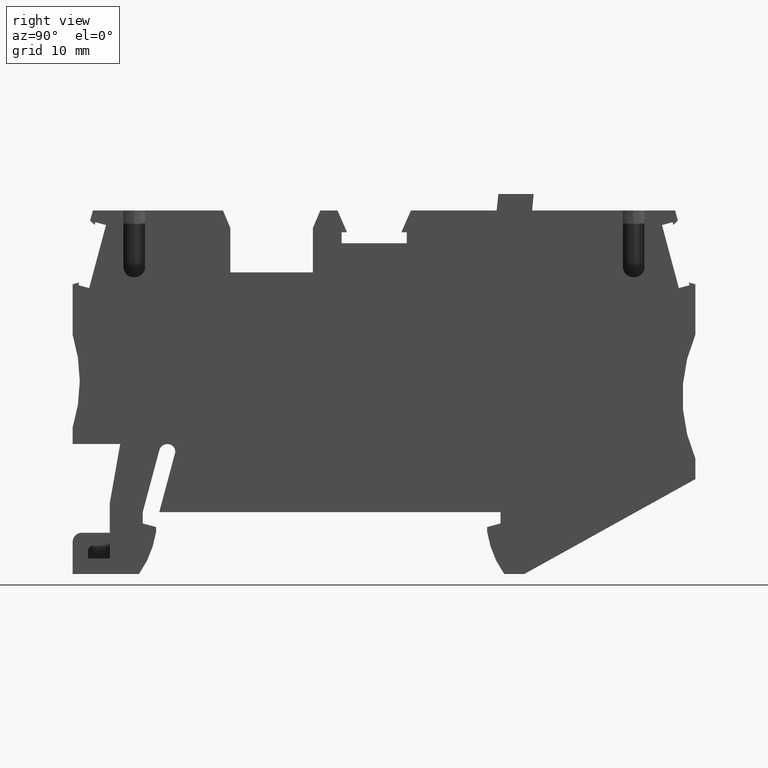
[diagram: clean part render]
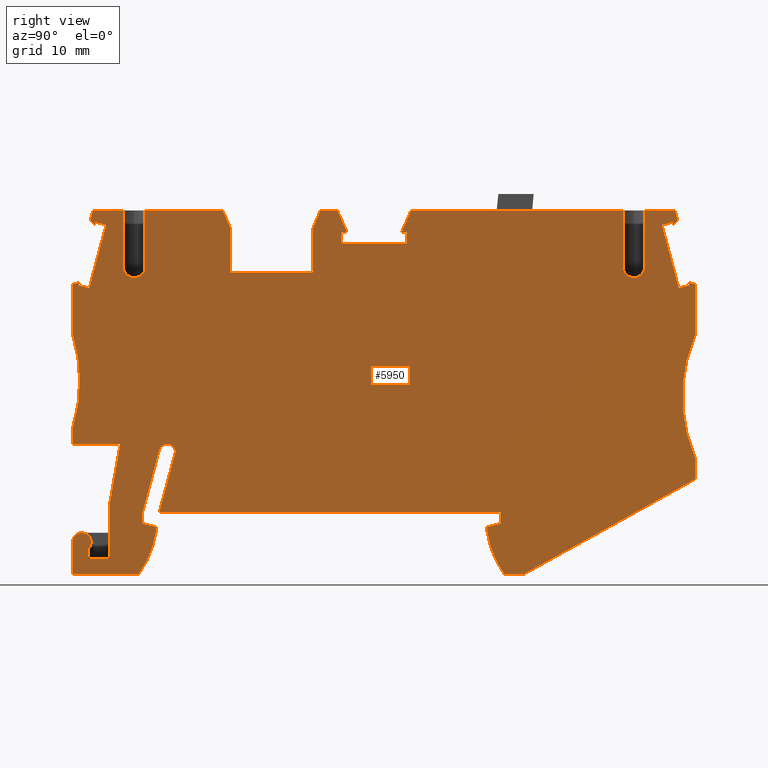
[diagram: same view with one face highlighted and labeled with its STEP entity id]
A machine part, right view. The second image highlights one B-rep face of the part: STEP entity #5950.
In plain terms, the highlighted planar face has unit normal (-1, 0, 0).
Its self-contained STEP definition (entity closure, byte-faithful):
#10=CARTESIAN_POINT('',(17.498485300259,-19.9194100470041,
53.6700000000077));
#20=DIRECTION('',(1.20466702215975E-13,5.7343834486746E-13,-1.));
#30=DIRECTION('',(-1.,0.,-1.20466702215975E-13));
#40=AXIS2_PLACEMENT_3D('',#10,#20,#30);
#50=PLANE('',#40);
#60=CARTESIAN_POINT('',(6.62732765293212,-43.2533150025752,
53.669999999993));
#70=DIRECTION('',(0.389303997086923,-0.921109330021222,
-4.81281681175005E-13));
#80=VECTOR('',#70,1.);
#90=LINE('',#60,#80);
#100=CARTESIAN_POINT('',(-7.78633249760623,-9.15000000000249,
53.6700000000108));
#110=VERTEX_POINT('',#100);
#120=CARTESIAN_POINT('',(-7.06783277832441,-10.850000000003,
53.6700000000099));
#130=VERTEX_POINT('',#120);
#140=EDGE_CURVE('',#110,#130,#90,.T.);
#150=ORIENTED_EDGE('',*,*,#140,.F.);
#160=CARTESIAN_POINT('',(-7.06783277832434,-41.5717607425285,
53.6699999999942));
#170=DIRECTION('',(-2.76167977375508E-15,1.,0.));
#180=VECTOR('',#170,1.);
#190=LINE('',#160,#180);
#200=CARTESIAN_POINT('',(-7.06783277832441,-15.1500000000016,
53.6700000000074));
#210=VERTEX_POINT('',#200);
#220=EDGE_CURVE('',#210,#130,#190,.T.);
#230=ORIENTED_EDGE('',*,*,#220,.T.);
#240=CARTESIAN_POINT('',(-31.4325633273473,-15.1500000000016,
53.6699999999942));
#250=DIRECTION('',(-1.,0.,0.));
#260=VECTOR('',#250,1.);
#270=LINE('',#240,#260);
#280=CARTESIAN_POINT('',(0.932167221675293,-15.1500000000016,
53.6700000000084));
#290=VERTEX_POINT('',#280);
#300=EDGE_CURVE('',#290,#210,#270,.T.);
#310=ORIENTED_EDGE('',*,*,#300,.T.);
#320=CARTESIAN_POINT('',(0.932167221675449,-42.5540372297518,
53.6699999999942));
#330=DIRECTION('',(5.53723733531797E-15,-1.,0.));
#340=VECTOR('',#330,1.);
#350=LINE('',#320,#340);
#360=CARTESIAN_POINT('',(0.932167221675343,-10.8500000000034,
53.6700000000109));
#370=VERTEX_POINT('',#360);
#380=EDGE_CURVE('',#370,#290,#350,.T.);
#390=ORIENTED_EDGE('',*,*,#380,.T.);
#400=CARTESIAN_POINT('',(-11.8063846804768,-40.9899397279071,
53.669999999992));
#410=DIRECTION('',(0.389303997086923,0.921109330021222,
5.75151037907062E-13));
#420=VECTOR('',#410,1.);
#430=LINE('',#400,#420);
#440=CARTESIAN_POINT('',(1.65066694095677,-9.15000000000342,
53.6700000000119));
#450=VERTEX_POINT('',#440);
#460=EDGE_CURVE('',#370,#450,#430,.T.);
#470=ORIENTED_EDGE('',*,*,#460,.F.);
#480=CARTESIAN_POINT('',(-30.6958559619306,-9.15000000000734,
53.670000000008));
#490=DIRECTION('',(1.,1.21042065259758E-13,1.20466137065733E-13));
#500=VECTOR('',#490,1.);
#510=LINE('',#480,#500);
#520=CARTESIAN_POINT('',(3.32251284670154,-9.15000000000322,
53.6700000000121));
#530=VERTEX_POINT('',#520);
#540=EDGE_CURVE('',#450,#530,#510,.T.);
#550=ORIENTED_EDGE('',*,*,#540,.F.);
#560=CARTESIAN_POINT('',(18.9756823710978,-44.7695023145185,
53.6699999999936));
#570=DIRECTION('',(-0.402320578211921,0.915498854366965,
4.76507722169117E-13));
#580=VECTOR('',#570,1.);
#590=LINE('',#560,#580);
#600=CARTESIAN_POINT('',(4.24756568876222,-11.2550000000016,
53.670000000011));
#610=VERTEX_POINT('',#600);
#620=EDGE_CURVE('',#610,#530,#590,.T.);
#630=ORIENTED_EDGE('',*,*,#620,.T.);
#640=CARTESIAN_POINT('',(-30.9543174626305,-11.2550000000016,
53.6700000000068));
#650=DIRECTION('',(1.,0.,1.20466137065733E-13));
#660=VECTOR('',#650,1.);
#670=LINE('',#640,#660);
#680=CARTESIAN_POINT('',(3.71966722167664,-11.2550000000016,
53.670000000011));
#690=VERTEX_POINT('',#680);
#700=EDGE_CURVE('',#690,#610,#670,.T.);
#710=ORIENTED_EDGE('',*,*,#700,.T.);
#720=CARTESIAN_POINT('',(3.71966722167659,-42.8962991932687,
53.6699999999942));
#730=DIRECTION('',(0.,1.,0.));
#740=VECTOR('',#730,1.);
#750=LINE('',#720,#740);
#760=CARTESIAN_POINT('',(3.71966722167661,-12.3250000000012,
53.6700000000104));
#770=VERTEX_POINT('',#760);
#780=EDGE_CURVE('',#770,#690,#750,.T.);
#790=ORIENTED_EDGE('',*,*,#780,.T.);
#800=CARTESIAN_POINT('',(-31.0856969427963,-12.3249999999992,
53.6699999999942));
#810=DIRECTION('',(-1.,5.79813974610488E-14,0.));
#820=VECTOR('',#810,1.);
#830=LINE('',#800,#820);
#840=CARTESIAN_POINT('',(10.0446672216768,-12.3250000000016,
53.6700000000111));
#850=VERTEX_POINT('',#840);
#860=EDGE_CURVE('',#850,#770,#830,.T.);
#870=ORIENTED_EDGE('',*,*,#860,.T.);
#880=CARTESIAN_POINT('',(10.0446672216767,-43.6729115409796,
53.6699999999942));
#890=DIRECTION('',(0.,1.,0.));
#900=VECTOR('',#890,1.);
#910=LINE('',#880,#900);
#920=CARTESIAN_POINT('',(10.0446672216767,-11.2550000000016,
53.6700000000117));
#930=VERTEX_POINT('',#920);
#940=EDGE_CURVE('',#850,#930,#910,.T.);
#950=ORIENTED_EDGE('',*,*,#940,.F.);
#960=CARTESIAN_POINT('',(-30.9543174626305,-11.2550000000016,
53.6700000000068));
#970=DIRECTION('',(1.,0.,1.20466137065733E-13));
#980=VECTOR('',#970,1.);
#990=LINE('',#960,#980);
#1000=CARTESIAN_POINT('',(9.51676875458973,-11.2550000000016,
53.6700000000117));
#1010=VERTEX_POINT('',#1000);
#1020=EDGE_CURVE('',#1010,#930,#990,.T.);
#1030=ORIENTED_EDGE('',*,*,#1020,.T.);
#1040=CARTESIAN_POINT('',(-3.97307229660355,-41.9517495493763,
53.6699999999924));
#1050=DIRECTION('',(-0.402320578212711,-0.915498854366618,
-5.73485703370125E-13));
#1060=VECTOR('',#1050,1.);
#1070=LINE('',#1040,#1060);
#1080=CARTESIAN_POINT('',(10.4418215966536,-9.15000000000095,
53.670000000013));
#1090=VERTEX_POINT('',#1080);
#1100=EDGE_CURVE('',#1090,#1010,#1070,.T.);
#1110=ORIENTED_EDGE('',*,*,#1100,.T.);
#1120=CARTESIAN_POINT('',(-30.6958559619292,-9.14999999999613,
53.670000000008));
#1130=DIRECTION('',(1.,-1.17433840429726E-13,1.20466137065733E-13));
#1140=VECTOR('',#1130,1.);
#1150=LINE('',#1120,#1140);
#1160=CARTESIAN_POINT('',(31.0066808257379,-9.15000000000337,
53.6700000000155));
#1170=VERTEX_POINT('',#1160);
#1180=EDGE_CURVE('',#1090,#1170,#1150,.T.);
#1190=ORIENTED_EDGE('',*,*,#1180,.F.);
#1200=CARTESIAN_POINT('',(31.0066808257462,-46.246723176996,
53.6699999999942));
#1210=DIRECTION('',(-2.25583440816024E-13,1.,5.73423253324989E-13));
#1220=VECTOR('',#1210,1.);
#1230=LINE('',#1200,#1220);
#1240=CARTESIAN_POINT('',(31.0066808257384,-14.6445224466614,
53.6700000000124));
#1250=VERTEX_POINT('',#1240);
#1260=EDGE_CURVE('',#1250,#1170,#1230,.T.);
#1270=ORIENTED_EDGE('',*,*,#1260,.T.);
#1280=CARTESIAN_POINT('',(32.0066808257384,-14.6445224466614,
53.6700000000124));
#1290=DIRECTION('',(-6.84227765783602E-49,0.,1.));
#1300=DIRECTION('',(1.,0.,6.84227765783602E-49));
#1310=AXIS2_PLACEMENT_3D('',#1280,#1290,#1300);
#1320=CIRCLE('',#1310,0.999999999999998);
#1330=CARTESIAN_POINT('',(32.0066808257389,-15.6445224466418,
53.6700000000119));
#1340=VERTEX_POINT('',#1330);
#1350=EDGE_CURVE('',#1250,#1340,#1320,.T.);
#1360=ORIENTED_EDGE('',*,*,#1350,.F.);
#1370=CARTESIAN_POINT('',(-31.4932830488171,-15.6445224466619,
53.6700000000042));
#1380=DIRECTION('',(-1.,-3.16899284591443E-13,-1.20466137065853E-13));
#1390=VECTOR('',#1380,1.);
#1400=LINE('',#1370,#1390);
#1410=CARTESIAN_POINT('',(32.1066808257383,-15.6445224466418,
53.6700000000119));
#1420=VERTEX_POINT('',#1410);
#1430=EDGE_CURVE('',#1420,#1340,#1400,.T.);
#1440=ORIENTED_EDGE('',*,*,#1430,.T.);
#1450=CARTESIAN_POINT('',(32.1066808257391,-14.6445224466551,
53.6700000000124));
#1460=DIRECTION('',(6.84227765783602E-49,0.,-1.));
#1470=DIRECTION('',(-1.,-1.08232867113145E-13,-6.84227765783602E-49));
#1480=AXIS2_PLACEMENT_3D('',#1450,#1460,#1470);
#1490=CIRCLE('',#1480,1.);
#1500=CARTESIAN_POINT('',(33.1066808257391,-14.6445224466548,
53.6700000000126));
#1510=VERTEX_POINT('',#1500);
#1520=EDGE_CURVE('',#1510,#1420,#1490,.T.);
#1530=ORIENTED_EDGE('',*,*,#1520,.T.);
#1540=CARTESIAN_POINT('',(33.1066808257463,-46.5045707548921,
53.6699999999943));
#1550=DIRECTION('',(2.25583440816024E-13,-1.,-5.73423253324989E-13));
#1560=VECTOR('',#1550,1.);
#1570=LINE('',#1540,#1560);
#1580=CARTESIAN_POINT('',(33.1066808257379,-9.15000000000362,
53.6700000000157));
#1590=VERTEX_POINT('',#1580);
#1600=EDGE_CURVE('',#1590,#1510,#1570,.T.);
#1610=ORIENTED_EDGE('',*,*,#1600,.T.);
#1620=CARTESIAN_POINT('',(-30.6958559619292,-9.14999999999613,
53.670000000008));
#1630=DIRECTION('',(1.,-1.17433840429726E-13,1.20466137065733E-13));
#1640=VECTOR('',#1630,1.);
#1650=LINE('',#1620,#1640);
#1660=CARTESIAN_POINT('',(36.07197299233,-9.15000000000398,
53.6700000000161));
#1670=VERTEX_POINT('',#1660);
#1680=EDGE_CURVE('',#1590,#1670,#1650,.T.);
#1690=ORIENTED_EDGE('',*,*,#1680,.F.);
#1700=CARTESIAN_POINT('',(46.5224801796062,-48.1518237877173,
53.669999999995));
#1710=DIRECTION('',(-0.258819045102926,0.96592582628896,
5.22692999993524E-13));
#1720=VECTOR('',#1710,1.);
#1730=LINE('',#1700,#1720);
#1740=CARTESIAN_POINT('',(36.3299328899745,-10.112719444327,
53.6700000000155));
#1750=VERTEX_POINT('',#1740);
#1760=EDGE_CURVE('',#1750,#1670,#1730,.T.);
#1770=ORIENTED_EDGE('',*,*,#1760,.T.);
#1780=CARTESIAN_POINT('',(3.56530628123667,-42.8773460529763,
53.6699999999928));
#1790=DIRECTION('',(-0.707106781187503,-0.707106781185593,
-4.90718576884319E-13));
#1800=VECTOR('',#1790,1.);
#1810=LINE('',#1780,#1800);
#1820=CARTESIAN_POINT('',(35.8971897020823,-10.545462632218,
53.6700000000153));
#1830=VERTEX_POINT('',#1820);
#1840=EDGE_CURVE('',#1750,#1830,#1810,.T.);
#1850=ORIENTED_EDGE('',*,*,#1840,.F.);
#1860=CARTESIAN_POINT('',(45.955117560187,-48.0821604176192,
53.6699999999949));
#1870=DIRECTION('',(0.258819045101928,-0.965925826289227,
-5.22720755569139E-13));
#1880=VECTOR('',#1870,1.);
#1890=LINE('',#1860,#1880);
#1900=CARTESIAN_POINT('',(35.8267113036061,-10.2824336682681,
53.6700000000154));
#1910=VERTEX_POINT('',#1900);
#1920=EDGE_CURVE('',#1910,#1830,#1890,.T.);
#1930=ORIENTED_EDGE('',*,*,#1920,.T.);
#1940=CARTESIAN_POINT('',(-33.1026799550058,-28.7520083907732,
53.6699999999965));
#1950=DIRECTION('',(0.9659258262891,0.258819045102404,2.647881913731E-13
));
#1960=VECTOR('',#1950,1.);
#1970=LINE('',#1940,#1960);
#1980=CARTESIAN_POINT('',(34.7931706694759,-10.5593700465279,
53.6700000000151));
#1990=VERTEX_POINT('',#1980);
#2000=EDGE_CURVE('',#1990,#1910,#1970,.T.);
#2010=ORIENTED_EDGE('',*,*,#2000,.T.);
#2020=CARTESIAN_POINT('',(44.8096873663856,-47.9415192742283,
53.6699999999949));
#2030=DIRECTION('',(0.258819045102705,-0.965925826289019,
-5.22720755569139E-13));
#2040=VECTOR('',#2030,1.);
#2050=LINE('',#2020,#2040);
#2060=CARTESIAN_POINT('',(36.4302011297503,-16.6688508978054,
53.6700000000118));
#2070=VERTEX_POINT('',#2060);
#2080=EDGE_CURVE('',#1990,#2070,#2050,.T.);
#2090=ORIENTED_EDGE('',*,*,#2080,.F.);
#2100=CARTESIAN_POINT('',(-33.9340399848925,-35.5228924805422,
53.6699999999925));
#2110=DIRECTION('',(-0.965925826288933,-0.258819045103026,
-2.647881913731E-13));
#2120=VECTOR('',#2110,1.);
#2130=LINE('',#2100,#2120);
#2140=CARTESIAN_POINT('',(37.4637417638806,-16.3919145195448,
53.6700000000121));
#2150=VERTEX_POINT('',#2140);
#2160=EDGE_CURVE('',#2150,#2070,#2130,.T.);
#2170=ORIENTED_EDGE('',*,*,#2160,.T.);
#2180=CARTESIAN_POINT('',(45.9551175602499,-48.0821604176269,
53.6699999999949));
#2190=DIRECTION('',(0.258819045103503,-0.965925826288805,
-5.22720755569139E-13));
#2200=VECTOR('',#2190,1.);
#2210=LINE('',#2180,#2200);
#2220=CARTESIAN_POINT('',(37.3932633654053,-16.1288855555997,
53.6700000000122));
#2230=VERTEX_POINT('',#2220);
#2240=EDGE_CURVE('',#2230,#2150,#2210,.T.);
#2250=ORIENTED_EDGE('',*,*,#2240,.T.);
#2260=CARTESIAN_POINT('',(-29.3566806060777,1.75670802586475,
53.6700000000144));
#2270=DIRECTION('',(-0.965925826290939,0.25881904509554,
3.20576898360514E-14));
#2280=VECTOR('',#2270,1.);
#2290=LINE('',#2260,#2280);
#2300=CARTESIAN_POINT('',(38.0321672216757,-16.3000793279236,
53.6700000000122));
#2310=VERTEX_POINT('',#2300);
#2320=EDGE_CURVE('',#2310,#2230,#2290,.T.);
#2330=ORIENTED_EDGE('',*,*,#2320,.T.);
#2340=CARTESIAN_POINT('',(38.0321672216757,-47.1093444392495,
53.6699999999945));
#2350=DIRECTION('',(5.55111512312578E-17,1.,5.73430192218893E-13));
#2360=VECTOR('',#2350,1.);
#2370=LINE('',#2340,#2360);
#2380=CARTESIAN_POINT('',(38.0321672216757,-21.2000000000026,
53.6700000000076));
#2390=VERTEX_POINT('',#2380);
#2400=EDGE_CURVE('',#2390,#2310,#2370,.T.);
#2410=ORIENTED_EDGE('',*,*,#2400,.T.);
#2420=CARTESIAN_POINT('',(51.7798943065431,-27.2000000000027,
53.6700000000076));
#2430=DIRECTION('',(0.,0.,1.));
#2440=DIRECTION('',(1.,0.,0.));
#2450=AXIS2_PLACEMENT_3D('',#2420,#2430,#2440);
#2460=CIRCLE('',#2450,15.);
#2470=CARTESIAN_POINT('',(38.0321672216756,-33.2000000000027,
53.6700000000076));
#2480=VERTEX_POINT('',#2470);
#2490=EDGE_CURVE('',#2390,#2480,#2460,.T.);
#2500=ORIENTED_EDGE('',*,*,#2490,.F.);
#2510=CARTESIAN_POINT('',(38.0321672216756,-47.1093444392495,
53.6699999999945));
#2520=DIRECTION('',(8.32667268468867E-17,1.,5.73430192218893E-13));
#2530=VECTOR('',#2520,1.);
#2540=LINE('',#2510,#2530);
#2550=CARTESIAN_POINT('',(38.0321672216756,-35.2,53.6700000000014));
#2560=VERTEX_POINT('',#2550);
#2570=EDGE_CURVE('',#2560,#2480,#2540,.T.);
#2580=ORIENTED_EDGE('',*,*,#2570,.T.);
#2590=CARTESIAN_POINT('',(-39.1523305504364,-78.0224586081626,
53.6699999999675));
#2600=DIRECTION('',(0.874435210897321,0.485142311021166,
3.83582055007992E-13));
#2610=VECTOR('',#2600,1.);
#2620=LINE('',#2590,#2610);
#2630=CARTESIAN_POINT('',(21.4498082777127,-44.4000000000015,
53.6699999999941));
#2640=VERTEX_POINT('',#2630);
#2650=EDGE_CURVE('',#2640,#2560,#2620,.T.);
#2660=ORIENTED_EDGE('',*,*,#2650,.T.);
#2670=CARTESIAN_POINT('',(-35.0240117337568,-44.3999999999983,
53.6699999999873));
#2680=DIRECTION('',(1.,-5.79120085220097E-14,1.20466137065733E-13));
#2690=VECTOR('',#2680,1.);
#2700=LINE('',#2670,#2690);
#2710=CARTESIAN_POINT('',(19.4911108748079,-44.4000000000014,
53.6699999999939));
#2720=VERTEX_POINT('',#2710);
#2730=EDGE_CURVE('',#2720,#2640,#2700,.T.);
#2740=ORIENTED_EDGE('',*,*,#2730,.T.);
#2750=CARTESIAN_POINT('',(27.2261399010515,-38.8846282117038,
53.6699999999942));
#2760=DIRECTION('',(0.,0.,-1.));
#2770=DIRECTION('',(-1.,0.,0.));
#2780=AXIS2_PLACEMENT_3D('',#2750,#2760,#2770);
#2790=CIRCLE('',#2780,9.499999999999);
#2800=CARTESIAN_POINT('',(17.8321672216751,-40.3000000000019,
53.669999999996));
#2810=VERTEX_POINT('',#2800);
#2820=EDGE_CURVE('',#2720,#2810,#2790,.T.);
#2830=ORIENTED_EDGE('',*,*,#2820,.F.);
#2840=CARTESIAN_POINT('',(17.8321672216721,-44.6290963090104,
53.6699999999942));
#2850=DIRECTION('',(-6.9022565440946E-13,-1.,0.));
#2860=VECTOR('',#2850,1.);
#2870=LINE('',#2840,#2860);
#2880=CARTESIAN_POINT('',(17.8321672216754,-39.8483339501617,
53.6699999999963));
#2890=VERTEX_POINT('',#2880);
#2900=EDGE_CURVE('',#2890,#2810,#2870,.T.);
#2910=ORIENTED_EDGE('',*,*,#2900,.T.);
#2920=CARTESIAN_POINT('',(-36.2442529339963,-54.3380670604362,
53.6699999999942));
#2930=DIRECTION('',(-0.965925826289086,-0.258819045102457,0.));
#2940=VECTOR('',#2930,1.);
#2950=LINE('',#2920,#2940);
#2960=CARTESIAN_POINT('',(19.1321672216756,-39.5000000000013,
53.6699999999966));
#2970=VERTEX_POINT('',#2960);
#2980=EDGE_CURVE('',#2970,#2890,#2950,.T.);
#2990=ORIENTED_EDGE('',*,*,#2980,.T.);
#3000=CARTESIAN_POINT('',(19.1321672216756,-44.7887162381846,
53.6699999999942));
#3010=DIRECTION('',(0.,-1.,0.));
#3020=VECTOR('',#3010,1.);
#3030=LINE('',#3000,#3020);
#3040=CARTESIAN_POINT('',(19.1321672216756,-38.4000000000014,
53.6699999999973));
#3050=VERTEX_POINT('',#3040);
#3060=EDGE_CURVE('',#3050,#2970,#3030,.T.);
#3070=ORIENTED_EDGE('',*,*,#3060,.T.);
#3080=CARTESIAN_POINT('',(-34.2873043683398,-38.4000000000014,
53.6699999999908));
#3090=DIRECTION('',(-1.,0.,-1.20466137065733E-13));
#3100=VECTOR('',#3090,1.);
#3110=LINE('',#3080,#3100);
#3120=CARTESIAN_POINT('',(-13.9678327783249,-38.4000000000014,
53.6699999999933));
#3130=VERTEX_POINT('',#3120);
#3140=EDGE_CURVE('',#3050,#3130,#3110,.T.);
#3150=ORIENTED_EDGE('',*,*,#3140,.F.);
#3160=CARTESIAN_POINT('',(-14.5708539323056,-40.6505055846918,
53.6699999999919));
#3170=DIRECTION('',(-0.258819045102995,-0.965925826288942,
-5.8507365618965E-13));
#3180=VECTOR('',#3170,1.);
#3190=LINE('',#3160,#3180);
#3200=CARTESIAN_POINT('',(-12.4395449513892,-32.6963521812908,
53.6699999999967));
#3210=VERTEX_POINT('',#3200);
#3220=EDGE_CURVE('',#3210,#3130,#3190,.T.);
#3230=ORIENTED_EDGE('',*,*,#3220,.T.);
#3240=CARTESIAN_POINT('',(-13.1156930297916,-32.5151788497187,
53.6699999999942));
#3250=DIRECTION('',(0.,0.,1.));
#3260=DIRECTION('',(1.,0.,0.));
#3270=AXIS2_PLACEMENT_3D('',#3240,#3250,#3260);
#3280=CIRCLE('',#3270,0.700000000000186);
#3290=CARTESIAN_POINT('',(-12.9558416625104,-31.8336749683074,
53.6699999999967));
#3300=VERTEX_POINT('',#3290);
#3310=EDGE_CURVE('',#3210,#3300,#3280,.T.);
#3320=ORIENTED_EDGE('',*,*,#3310,.F.);
#3330=CARTESIAN_POINT('',(-13.1855065178956,-32.6000000000015,
53.6699999999942));
#3340=DIRECTION('',(0.,0.,1.));
#3350=DIRECTION('',(1.,0.,0.));
#3360=AXIS2_PLACEMENT_3D('',#3330,#3340,#3350);
#3370=CIRCLE('',#3360,0.799999999999994);
#3380=CARTESIAN_POINT('',(-13.9582471789267,-32.3929447639189,
53.6699999999967));
#3390=VERTEX_POINT('',#3380);
#3400=EDGE_CURVE('',#3300,#3390,#3370,.T.);
#3410=ORIENTED_EDGE('',*,*,#3400,.F.);
#3420=CARTESIAN_POINT('',(-16.1198905892186,-40.4603077989502,
53.6699999999942));
#3430=DIRECTION('',(-0.258819045103168,-0.965925826288895,0.));
#3440=VECTOR('',#3430,1.);
#3450=LINE('',#3420,#3440);
#3460=CARTESIAN_POINT('',(-15.5678327783264,-38.3999999999907,
53.6699999999931));
#3470=VERTEX_POINT('',#3460);
#3480=EDGE_CURVE('',#3390,#3470,#3450,.T.);
#3490=ORIENTED_EDGE('',*,*,#3480,.F.);
#3500=CARTESIAN_POINT('',(-15.5678327783241,-40.5280919748539,
53.6699999999942));
#3510=DIRECTION('',(0.,1.,0.));
#3520=VECTOR('',#3510,1.);
#3530=LINE('',#3500,#3520);
#3540=CARTESIAN_POINT('',(-15.5678327783241,-39.5000000000014,
53.6699999999924));
#3550=VERTEX_POINT('',#3540);
#3560=EDGE_CURVE('',#3550,#3470,#3530,.T.);
#3570=ORIENTED_EDGE('',*,*,#3560,.T.);
#3580=CARTESIAN_POINT('',(-33.8218110628281,-34.6088612600111,
53.6699999999942));
#3590=DIRECTION('',(-0.96592582628904,0.258819045102626,0.));
#3600=VECTOR('',#3590,1.);
#3610=LINE('',#3580,#3600);
#3620=CARTESIAN_POINT('',(-14.2678327783248,-39.8483339501618,
53.6699999999924));
#3630=VERTEX_POINT('',#3620);
#3640=EDGE_CURVE('',#3630,#3550,#3610,.T.);
#3650=ORIENTED_EDGE('',*,*,#3640,.T.);
#3660=CARTESIAN_POINT('',(-14.2678327783248,-40.6877119040276,
53.6699999999942));
#3670=DIRECTION('',(0.,1.,0.));
#3680=VECTOR('',#3670,1.);
#3690=LINE('',#3660,#3680);
#3700=CARTESIAN_POINT('',(-14.2678327783248,-40.3000000000027,
53.6699999999921));
#3710=VERTEX_POINT('',#3700);
#3720=EDGE_CURVE('',#3710,#3630,#3690,.T.);
#3730=ORIENTED_EDGE('',*,*,#3720,.T.);
#3740=CARTESIAN_POINT('',(-23.6618054577009,-38.8846282117039,
53.6699999999918));
#3750=DIRECTION('',(0.,0.,1.));
#3760=DIRECTION('',(1.,0.,0.));
#3770=AXIS2_PLACEMENT_3D('',#3740,#3750,#3760);
#3780=CIRCLE('',#3770,9.499999999999);
#3790=CARTESIAN_POINT('',(-15.9267764314572,-44.4000000000014,
53.6699999999896));
#3800=VERTEX_POINT('',#3790);
#3810=EDGE_CURVE('',#3800,#3710,#3780,.T.);
#3820=ORIENTED_EDGE('',*,*,#3810,.T.);
#3830=CARTESIAN_POINT('',(-35.0240117337573,-44.4000000000022,
53.6699999999873));
#3840=DIRECTION('',(1.,3.8219427622721E-14,1.20466137065733E-13));
#3850=VECTOR('',#3840,1.);
#3860=LINE('',#3830,#3850);
#3870=CARTESIAN_POINT('',(-22.3678327783247,-44.4000000000017,
53.6699999999888));
#3880=VERTEX_POINT('',#3870);
#3890=EDGE_CURVE('',#3880,#3800,#3860,.T.);
#3900=ORIENTED_EDGE('',*,*,#3890,.T.);
#3910=CARTESIAN_POINT('',(-22.3678327783247,-39.6931569607141,
53.6699999999915));
#3920=DIRECTION('',(0.,-1.,-5.73430192218893E-13));
#3930=VECTOR('',#3920,1.);
#3940=LINE('',#3910,#3930);
#3950=CARTESIAN_POINT('',(-22.3678327783247,-41.3000000000017,
53.6699999999906));
#3960=VERTEX_POINT('',#3950);
#3970=EDGE_CURVE('',#3960,#3880,#3940,.T.);
#3980=ORIENTED_EDGE('',*,*,#3970,.T.);
#3990=CARTESIAN_POINT('',(-21.4678327783241,-41.3000000000016,
53.6699999999942));
#4000=DIRECTION('',(0.,0.,1.));
#4010=DIRECTION('',(1.,0.,0.));
#4020=AXIS2_PLACEMENT_3D('',#3990,#4000,#4010);
#4030=CIRCLE('',#4020,0.899999999999826);
#4040=CARTESIAN_POINT('',(-20.8678327783247,-41.9708203932519,
53.6699999999904));
#4050=VERTEX_POINT('',#4040);
#4060=EDGE_CURVE('',#4050,#3960,#4030,.T.);
#4070=ORIENTED_EDGE('',*,*,#4060,.T.);
#4080=CARTESIAN_POINT('',(-20.8678327783247,-39.8773338020684,
53.6699999999916));
#4090=DIRECTION('',(0.,-1.,-5.73430192218893E-13));
#4100=VECTOR('',#4090,1.);
#4110=LINE('',#4080,#4100);
#4120=CARTESIAN_POINT('',(-20.8678327783247,-42.9000000000017,
53.6699999999899));
#4130=VERTEX_POINT('',#4120);
#4140=EDGE_CURVE('',#4050,#4130,#4110,.T.);
#4150=ORIENTED_EDGE('',*,*,#4140,.F.);
#4160=CARTESIAN_POINT('',(-34.8398348924029,-42.9000000000017,
53.6699999999882));
#4170=DIRECTION('',(1.,0.,1.20466137065733E-13));
#4180=VECTOR('',#4170,1.);
#4190=LINE('',#4160,#4180);
#4200=CARTESIAN_POINT('',(-18.7678327783247,-42.9000000000017,
53.6699999999901));
#4210=VERTEX_POINT('',#4200);
#4220=EDGE_CURVE('',#4130,#4210,#4190,.T.);
#4230=ORIENTED_EDGE('',*,*,#4220,.F.);
#4240=CARTESIAN_POINT('',(-18.7678327783247,-40.1351813799645,
53.6699999999917));
#4250=DIRECTION('',(0.,1.,5.73430192218893E-13));
#4260=VECTOR('',#4250,1.);
#4270=LINE('',#4240,#4260);
#4280=CARTESIAN_POINT('',(-18.7678327783247,-37.5384100015805,
53.6699999999932));
#4290=VERTEX_POINT('',#4280);
#4300=EDGE_CURVE('',#4210,#4290,#4270,.T.);
#4310=ORIENTED_EDGE('',*,*,#4300,.F.);
#4320=CARTESIAN_POINT('',(-19.2160104842472,-40.0801520771364,
53.6699999999917));
#4330=DIRECTION('',(-0.17364817766693,-0.984807753012208,
-5.85649584383674E-13));
#4340=VECTOR('',#4330,1.);
#4350=LINE('',#4320,#4340);
#4360=CARTESIAN_POINT('',(-17.755996268679,-31.8000000000011,
53.6699999999966));
#4370=VERTEX_POINT('',#4360);
#4380=EDGE_CURVE('',#4370,#4290,#4350,.T.);
#4390=ORIENTED_EDGE('',*,*,#4380,.T.);
#4400=CARTESIAN_POINT('',(-33.4769262663803,-31.7999999999985,
53.6699999999947));
#4410=DIRECTION('',(1.,-1.71668235182665E-13,1.20466137065733E-13));
#4420=VECTOR('',#4410,1.);
#4430=LINE('',#4400,#4420);
#4440=CARTESIAN_POINT('',(-22.3678327783245,-31.8000000000004,
53.669999999996));
#4450=VERTEX_POINT('',#4440);
#4460=EDGE_CURVE('',#4450,#4370,#4430,.T.);
#4470=ORIENTED_EDGE('',*,*,#4460,.T.);
#4480=CARTESIAN_POINT('',(-22.3678327783245,-39.6931569607141,
53.6699999999915));
#4490=DIRECTION('',(2.05391259555654E-15,-1.,-5.73423253324989E-13));
#4500=VECTOR('',#4490,1.);
#4510=LINE('',#4480,#4500);
#4520=CARTESIAN_POINT('',(-22.3678327783245,-30.2000000000027,
53.669999999997));
#4530=VERTEX_POINT('',#4520);
#4540=EDGE_CURVE('',#4530,#4450,#4510,.T.);
#4550=ORIENTED_EDGE('',*,*,#4540,.T.);
#4560=CARTESIAN_POINT('',(-36.6769207995787,-25.7000000000028,
53.6699999999978));
#4570=DIRECTION('',(0.,0.,1.));
#4580=DIRECTION('',(1.,0.,0.));
#4590=AXIS2_PLACEMENT_3D('',#4560,#4570,#4580);
#4600=CIRCLE('',#4590,15.);
#4610=CARTESIAN_POINT('',(-22.3678327783245,-21.2000000000028,
53.6700000000021));
#4620=VERTEX_POINT('',#4610);
#4630=EDGE_CURVE('',#4530,#4620,#4600,.T.);
#4640=ORIENTED_EDGE('',*,*,#4630,.F.);
#4650=CARTESIAN_POINT('',(-22.3678327783245,-39.6931569607141,
53.6699999999915));
#4660=DIRECTION('',(2.05391259555654E-15,-1.,-5.73423253324989E-13));
#4670=VECTOR('',#4660,1.);
#4680=LINE('',#4650,#4670);
#4690=CARTESIAN_POINT('',(-22.3678327783246,-16.3000793279225,
53.6700000000049));
#4700=VERTEX_POINT('',#4690);
#4710=EDGE_CURVE('',#4700,#4620,#4680,.T.);
#4720=ORIENTED_EDGE('',*,*,#4710,.T.);
#4730=CARTESIAN_POINT('',(-31.8869546500592,-18.8507203460335,
53.6700000000023));
#4740=DIRECTION('',(0.965925826290942,0.25881904509553,
2.647881913731E-13));
#4750=VECTOR('',#4740,1.);
#4760=LINE('',#4730,#4750);
#4770=CARTESIAN_POINT('',(-21.7289289220527,-16.1288855555983,
53.6700000000051));
#4780=VERTEX_POINT('',#4770);
#4790=EDGE_CURVE('',#4700,#4780,#4760,.T.);
#4800=ORIENTED_EDGE('',*,*,#4790,.F.);
#4810=CARTESIAN_POINT('',(-27.8621918696753,-39.0185344922397,
53.6699999999912));
#4820=DIRECTION('',(0.258819045103216,0.965925826288882,
5.8507365618965E-13));
#4830=VECTOR('',#4820,1.);
#4840=LINE('',#4810,#4830);
#4850=CARTESIAN_POINT('',(-21.7994073205286,-16.3919145195456,
53.6700000000049));
#4860=VERTEX_POINT('',#4850);
#4870=EDGE_CURVE('',#4860,#4780,#4840,.T.);
#4880=ORIENTED_EDGE('',*,*,#4870,.T.);
#4890=CARTESIAN_POINT('',(-31.2733580505142,-13.8533770723114,
53.6700000000053));
#4900=DIRECTION('',(-0.96592582628901,0.25881904510274,
3.20715676238592E-14));
#4910=VECTOR('',#4900,1.);
#4920=LINE('',#4890,#4910);
#4930=CARTESIAN_POINT('',(-20.7658666864001,-16.6688508978053,
53.6700000000049));
#4940=VERTEX_POINT('',#4930);
#4950=EDGE_CURVE('',#4940,#4860,#4920,.T.);
#4960=ORIENTED_EDGE('',*,*,#4950,.T.);
#4970=CARTESIAN_POINT('',(-26.7897303657746,-39.1502162070814,
53.6699999999913));
#4980=DIRECTION('',(-0.258819045102715,-0.965925826289016,
-5.8507365618965E-13));
#4990=VECTOR('',#4980,1.);
#5000=LINE('',#4970,#4990);
#5010=CARTESIAN_POINT('',(-19.1288362261254,-10.559370046527,
53.6700000000086));
#5020=VERTEX_POINT('',#5010);
#5030=EDGE_CURVE('',#5020,#4940,#5000,.T.);
#5040=ORIENTED_EDGE('',*,*,#5030,.T.);
#5050=CARTESIAN_POINT('',(-30.4949591286781,-7.5138265937166,
53.670000000009));
#5060=DIRECTION('',(0.9659258262891,-0.258819045102404,
-3.20576898360514E-14));
#5070=VECTOR('',#5060,1.);
#5080=LINE('',#5050,#5070);
#5090=CARTESIAN_POINT('',(-20.1623768602549,-10.2824336682674,
53.6700000000086));
#5100=VERTEX_POINT('',#5090);
#5110=EDGE_CURVE('',#5100,#5020,#5080,.T.);
#5120=ORIENTED_EDGE('',*,*,#5110,.T.);
#5130=CARTESIAN_POINT('',(-27.8621918696399,-39.0185344922441,
53.6699999999912));
#5140=DIRECTION('',(0.258819045101928,0.965925826289227,
5.8507365618965E-13));
#5150=VECTOR('',#5140,1.);
#5160=LINE('',#5130,#5150);
#5170=CARTESIAN_POINT('',(-20.232855258731,-10.5454626322169,
53.6700000000085));
#5180=VERTEX_POINT('',#5170);
#5190=EDGE_CURVE('',#5180,#5100,#5160,.T.);
#5200=ORIENTED_EDGE('',*,*,#5190,.T.);
#5210=CARTESIAN_POINT('',(-29.7042555077718,-1.07406238320153,
53.6700000000128));
#5220=DIRECTION('',(0.707106781187495,-0.7071067811856,
-3.20243831453126E-13));
#5230=VECTOR('',#5220,1.);
#5240=LINE('',#5210,#5230);
#5250=CARTESIAN_POINT('',(-20.6655984466231,-10.1127194443259,
53.6700000000087));
#5260=VERTEX_POINT('',#5250);
#5270=EDGE_CURVE('',#5260,#5180,#5240,.T.);
#5280=ORIENTED_EDGE('',*,*,#5270,.T.);
#5290=CARTESIAN_POINT('',(-28.3934111192612,-38.9533089699361,
53.6699999999912));
#5300=DIRECTION('',(0.258819045102936,0.965925826288957,
5.8507365618965E-13));
#5310=VECTOR('',#5300,1.);
#5320=LINE('',#5290,#5310);
#5330=CARTESIAN_POINT('',(-20.4076385489789,-9.15000000000397,
53.6700000000093));
#5340=VERTEX_POINT('',#5330);
#5350=EDGE_CURVE('',#5260,#5340,#5320,.T.);
#5360=ORIENTED_EDGE('',*,*,#5350,.F.);
#5370=CARTESIAN_POINT('',(-30.6958559619303,-9.15000000000518,
53.670000000008));
#5380=DIRECTION('',(-1.,-1.1740608485411E-13,-1.20466137065733E-13));
#5390=VECTOR('',#5380,1.);
#5400=LINE('',#5370,#5390);
#5410=CARTESIAN_POINT('',(-17.442832778324,-9.15000000000362,
53.6700000000096));
#5420=VERTEX_POINT('',#5410);
#5430=EDGE_CURVE('',#5420,#5340,#5400,.T.);
#5440=ORIENTED_EDGE('',*,*,#5430,.T.);
#5450=CARTESIAN_POINT('',(-17.4428327783307,-40.2978709231601,
53.6699999999918));
#5460=DIRECTION('',(-2.14522843933196E-13,-1.,-5.7342325332499E-13));
#5470=VECTOR('',#5460,1.);
#5480=LINE('',#5450,#5470);
#5490=CARTESIAN_POINT('',(-17.4428327783252,-14.6445224466536,
53.6700000000066));
#5500=VERTEX_POINT('',#5490);
#5510=EDGE_CURVE('',#5420,#5500,#5480,.T.);
#5520=ORIENTED_EDGE('',*,*,#5510,.F.);
#5530=CARTESIAN_POINT('',(-16.4428327783252,-14.6445224466539,
53.6700000000066));
#5540=DIRECTION('',(6.64438279136028E-17,-1.70471113707983E-17,1.));
#5550=DIRECTION('',(1.,-9.71445146547012E-14,-6.64438279136045E-17));
#5560=AXIS2_PLACEMENT_3D('',#5530,#5540,#5550);
#5570=CIRCLE('',#5560,1.);
#5580=CARTESIAN_POINT('',(-16.4428327783243,-15.6445224466539,
53.6700000000066));
#5590=VERTEX_POINT('',#5580);
#5600=EDGE_CURVE('',#5500,#5590,#5570,.T.);
#5610=ORIENTED_EDGE('',*,*,#5600,.F.);
#5620=CARTESIAN_POINT('',(-31.4932830488159,-15.6445224466523,
53.6700000000042));
#5630=DIRECTION('',(1.,1.11285980430864E-13,1.20466137065853E-13));
#5640=VECTOR('',#5630,1.);
#5650=LINE('',#5620,#5640);
#5660=CARTESIAN_POINT('',(-16.3428327783249,-15.6445224466506,
53.670000000006));
#5670=VERTEX_POINT('',#5660);
#5680=EDGE_CURVE('',#5590,#5670,#5650,.T.);
#5690=ORIENTED_EDGE('',*,*,#5680,.F.);
#5700=CARTESIAN_POINT('',(-16.3428327783244,-14.6445224466602,
53.6700000000066));
#5710=DIRECTION('',(-6.64438279136028E-17,1.70471113707983E-17,-1.));
#5720=DIRECTION('',(-1.,-1.10883524584438E-14,6.64438279136027E-17));
#5730=AXIS2_PLACEMENT_3D('',#5700,#5710,#5720);
#5740=CIRCLE('',#5730,0.999999999999998);
#5750=CARTESIAN_POINT('',(-15.3428327783252,-14.6445224466602,
53.6700000000067));
#5760=VERTEX_POINT('',#5750);
#5770=EDGE_CURVE('',#5760,#5670,#5740,.T.);
#5780=ORIENTED_EDGE('',*,*,#5770,.T.);
#5790=CARTESIAN_POINT('',(-15.3428327783307,-40.5557185010562,
53.6699999999919));
#5800=DIRECTION('',(2.14522843933196E-13,1.,5.7342325332499E-13));
#5810=VECTOR('',#5800,1.);
#5820=LINE('',#5790,#5810);
#5830=CARTESIAN_POINT('',(-15.342832778324,-9.15000000000337,
53.6700000000099));
#5840=VERTEX_POINT('',#5830);
#5850=EDGE_CURVE('',#5760,#5840,#5820,.T.);
#5860=ORIENTED_EDGE('',*,*,#5850,.F.);
#5870=CARTESIAN_POINT('',(-30.6958559619303,-9.15000000000518,
53.670000000008));
#5880=DIRECTION('',(-1.,-1.1740608485411E-13,-1.20466137065733E-13));
#5890=VECTOR('',#5880,1.);
#5900=LINE('',#5870,#5890);
#5910=EDGE_CURVE('',#110,#5840,#5900,.T.);
#5920=ORIENTED_EDGE('',*,*,#5910,.T.);
#5930=EDGE_LOOP('',(#5920,#5860,#5780,#5690,#5610,#5520,#5440,#5360,
#5280,#5200,#5120,#5040,#4960,#4880,#4800,#4720,#4640,#4550,#4470,#4390,
#4310,#4230,#4150,#4070,#3980,#3900,#3820,#3730,#3650,#3570,#3490,#3410,
#3320,#3230,#3150,#3070,#2990,#2910,#2830,#2740,#2660,#2580,#2500,#2410,
#2330,#2250,#2170,#2090,#2010,#1930,#1850,#1770,#1690,#1610,#1530,#1440,
#1360,#1270,#1190,#1110,#1030,#950,#870,#790,#710,#630,#550,#470,#390,
#310,#230,#150));
#5940=FACE_OUTER_BOUND('',#5930,.T.);
#5950=ADVANCED_FACE('',(#5940),#50,.F.);